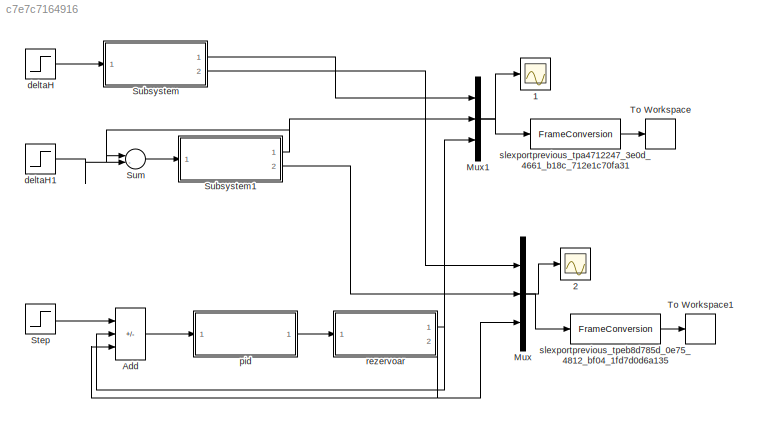
MODEL slx_c7e7c7164916
KIND model
BLOCK [Scope] 1
  DataFormat = Array
  Decimation = 1
  Floating = off
  Grid = on
  LimitDataPoints = on
  MaxDataPoints = 5000
  NumInputPorts = 1
  Ports = [1]
  SampleInput = off
  SampleTime = -1
  SaveName = ScopeData1
  SaveToWorkspace = off
  ShowLegends = on
  TickLabels = OneTimeTick
  TimeRange = auto
  YMax = 10
  YMin = -10
  ZoomMode = on
BLOCK [Scope] 2
  DataFormat = Array
  Decimation = 1
  Floating = off
  Grid = on
  LimitDataPoints = on
  MaxDataPoints = 5000
  NumInputPorts = 1
  Ports = [1]
  SampleInput = off
  SampleTime = -1
  SaveName = ScopeData
  SaveToWorkspace = off
  ShowLegends = off
  TickLabels = OneTimeTick
  TimeRange = auto
  YMax = 10
  YMin = -10
  ZoomMode = on
BLOCK [Sum] Add
  IconShape = rectangular
  Inputs = +--
  Ports = [3, 1]
BLOCK [Mux] Mux
  DisplayOption = bar
  Inputs = 3
  Ports = [3, 1]
BLOCK [Mux] Mux1
  DisplayOption = bar
  Inputs = 3
  Ports = [3, 1]
BLOCK [Step] Step
  After = 10
  Before = 1
  SampleTime = 0
  Time = 0
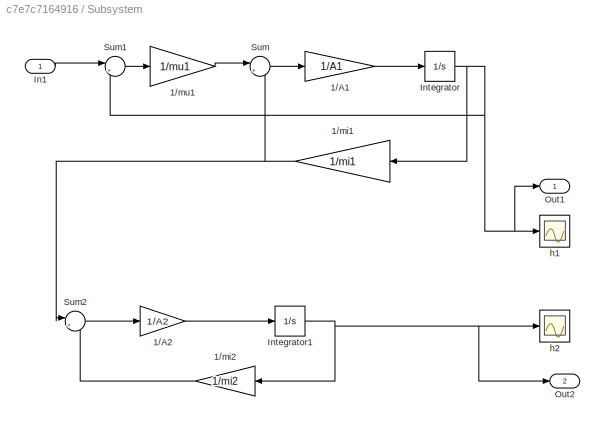
BLOCK [SubSystem] Subsystem
  FunctionWithSeparateData = off
  MaskHideContents = off
  MinAlgLoopOccurrences = off
  Opaque = off
  Ports = [1, 2]
  PropExecContextOutsideSubsystem = off
  RTWSystemCode = Auto
  RequestExecContextInheritance = off
BLOCK [Gain] Subsystem/1//A1
  Gain = 1/A1
BLOCK [Gain] Subsystem/1//A2
  Gain = 1/A2
BLOCK [Gain] Subsystem/1//mi1
  Gain = 1/mi1
BLOCK [Gain] Subsystem/1//mi2
  Gain = 1/mi2
BLOCK [Gain] Subsystem/1//mu1
  Gain = 1/mu1
BLOCK [Inport] Subsystem/In1
BLOCK [Integrator] Subsystem/Integrator
  InitialCondition = 1
  Ports = [1, 1]
BLOCK [Integrator] Subsystem/Integrator1
  InitialCondition = 1
  Ports = [1, 1]
BLOCK [Outport] Subsystem/Out1
BLOCK [Outport] Subsystem/Out2
  Port = 2
BLOCK [Sum] Subsystem/Sum
  Inputs = |+-
  Ports = [2, 1]
BLOCK [Sum] Subsystem/Sum1
  Inputs = |+-
  Ports = [2, 1]
BLOCK [Sum] Subsystem/Sum2
  Inputs = |+-
  Ports = [2, 1]
BLOCK [Scope] Subsystem/h1
  DataFormat = Array
  Decimation = 1
  Floating = off
  Grid = on
  LimitDataPoints = on
  MaxDataPoints = 5000
  NumInputPorts = 1
  Ports = [1]
  SampleInput = off
  SampleTime = -1
  SaveName = ScopeData2
  SaveToWorkspace = off
  ShowLegends = off
  TickLabels = OneTimeTick
  TimeRange = 600
  YMax = 10
  YMin = -10
  ZoomMode = on
BLOCK [Scope] Subsystem/h2
  DataFormat = Array
  Decimation = 1
  Floating = off
  Grid = on
  LimitDataPoints = on
  MaxDataPoints = 5000
  NumInputPorts = 1
  Ports = [1]
  SampleInput = off
  SampleTime = -1
  SaveName = ScopeData3
  SaveToWorkspace = off
  ShowLegends = off
  TickLabels = OneTimeTick
  TimeRange = 600
  YMax = 10
  YMin = -10
  ZoomMode = on
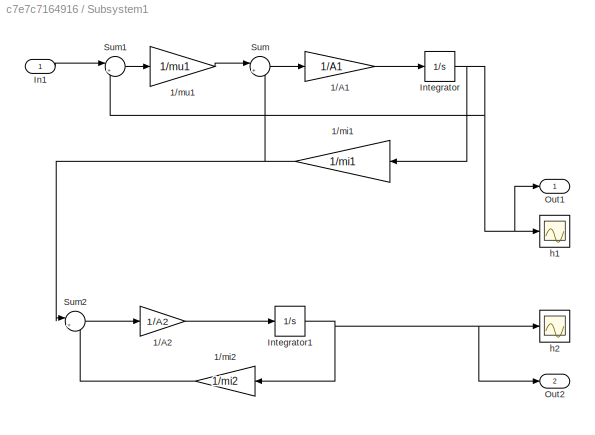
BLOCK [SubSystem] Subsystem1
  FunctionWithSeparateData = off
  MaskHideContents = off
  MinAlgLoopOccurrences = off
  Opaque = off
  Ports = [1, 2]
  PropExecContextOutsideSubsystem = off
  RTWSystemCode = Auto
  RequestExecContextInheritance = off
BLOCK [Gain] Subsystem1/1//A1
  Gain = 1/A1
BLOCK [Gain] Subsystem1/1//A2
  Gain = 1/A2
BLOCK [Gain] Subsystem1/1//mi1
  Gain = 1/mi1
BLOCK [Gain] Subsystem1/1//mi2
  Gain = 1/mi2
BLOCK [Gain] Subsystem1/1//mu1
  Gain = 1/mu1
BLOCK [Inport] Subsystem1/In1
BLOCK [Integrator] Subsystem1/Integrator
  InitialCondition = 1
  Ports = [1, 1]
BLOCK [Integrator] Subsystem1/Integrator1
  InitialCondition = 1
  Ports = [1, 1]
BLOCK [Outport] Subsystem1/Out1
BLOCK [Outport] Subsystem1/Out2
  Port = 2
BLOCK [Sum] Subsystem1/Sum
  Inputs = |+-
  Ports = [2, 1]
BLOCK [Sum] Subsystem1/Sum1
  Inputs = |+-
  Ports = [2, 1]
BLOCK [Sum] Subsystem1/Sum2
  Inputs = |+-
  Ports = [2, 1]
BLOCK [Scope] Subsystem1/h1
  DataFormat = Array
  Decimation = 1
  Floating = off
  Grid = on
  LimitDataPoints = on
  MaxDataPoints = 5000
  NumInputPorts = 1
  Ports = [1]
  SampleInput = off
  SampleTime = -1
  SaveName = ScopeData4
  SaveToWorkspace = off
  ShowLegends = off
  TickLabels = OneTimeTick
  TimeRange = 600
  YMax = 10
  YMin = -10
  ZoomMode = on
BLOCK [Scope] Subsystem1/h2
  DataFormat = Array
  Decimation = 1
  Floating = off
  Grid = on
  LimitDataPoints = on
  MaxDataPoints = 5000
  NumInputPorts = 1
  Ports = [1]
  SampleInput = off
  SampleTime = -1
  SaveName = ScopeData5
  SaveToWorkspace = off
  ShowLegends = off
  TickLabels = OneTimeTick
  TimeRange = 600
  YMax = 10
  YMin = -10
  ZoomMode = on
BLOCK [Sum] Sum
  Inputs = |-+
  Ports = [2, 1]
BLOCK [ToWorkspace] To Workspace
  FixptAsFi = on
  MaxDataPoints = inf
  Ports = [1]
  SampleTime = -1
  VariableName = k1
BLOCK [ToWorkspace] To Workspace1
  FixptAsFi = on
  MaxDataPoints = inf
  Ports = [1]
  SampleTime = -1
  VariableName = k2
BLOCK [Step] deltaH
  After = 15
  SampleTime = 0
BLOCK [Step] deltaH1
  After = 15
  SampleTime = 0
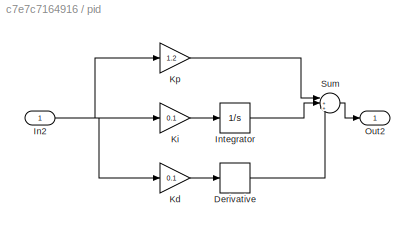
BLOCK [SubSystem] pid
  FunctionWithSeparateData = off
  MaskHideContents = off
  MinAlgLoopOccurrences = off
  Opaque = off
  Ports = [1, 1]
  PropExecContextOutsideSubsystem = off
  RTWSystemCode = Auto
  RequestExecContextInheritance = off
BLOCK [Derivative] pid/Derivative
BLOCK [Inport] pid/In2
BLOCK [Integrator] pid/Integrator
  Ports = [1, 1]
BLOCK [Gain] pid/Kd
  Gain = 0.1
BLOCK [Gain] pid/Ki
  Gain = 0.1
BLOCK [Gain] pid/Kp
  Gain = 1.2
BLOCK [Outport] pid/Out2
BLOCK [Sum] pid/Sum
  Inputs = |+++
  Ports = [3, 1]
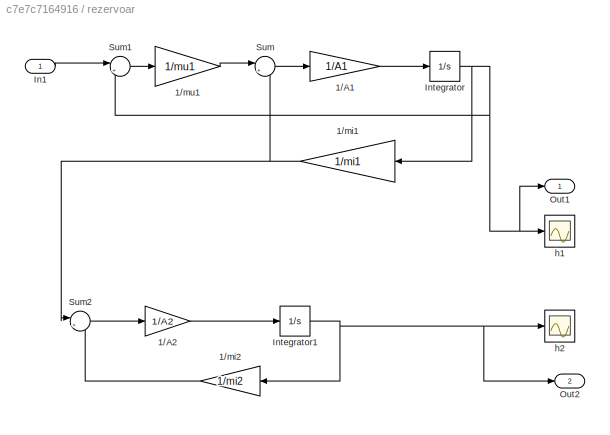
BLOCK [SubSystem] rezervoar
  FunctionWithSeparateData = off
  MaskHideContents = off
  MinAlgLoopOccurrences = off
  Opaque = off
  Ports = [1, 2]
  PropExecContextOutsideSubsystem = off
  RTWSystemCode = Auto
  RequestExecContextInheritance = off
BLOCK [Gain] rezervoar/1//A1
  Gain = 1/A1
BLOCK [Gain] rezervoar/1//A2
  Gain = 1/A2
BLOCK [Gain] rezervoar/1//mi1
  Gain = 1/mi1
BLOCK [Gain] rezervoar/1//mi2
  Gain = 1/mi2
BLOCK [Gain] rezervoar/1//mu1
  Gain = 1/mu1
BLOCK [Inport] rezervoar/In1
BLOCK [Integrator] rezervoar/Integrator
  InitialCondition = 1
  Ports = [1, 1]
BLOCK [Integrator] rezervoar/Integrator1
  InitialCondition = 1
  Ports = [1, 1]
BLOCK [Outport] rezervoar/Out1
BLOCK [Outport] rezervoar/Out2
  Port = 2
BLOCK [Sum] rezervoar/Sum
  Inputs = |+-
  Ports = [2, 1]
BLOCK [Sum] rezervoar/Sum1
  Inputs = |+-
  Ports = [2, 1]
BLOCK [Sum] rezervoar/Sum2
  Inputs = |+-
  Ports = [2, 1]
BLOCK [Scope] rezervoar/h1
  DataFormat = Array
  Decimation = 1
  Floating = off
  Grid = on
  LimitDataPoints = on
  MaxDataPoints = 5000
  NumInputPorts = 1
  Ports = [1]
  SampleInput = off
  SampleTime = -1
  SaveName = ScopeData6
  SaveToWorkspace = off
  ShowLegends = off
  TickLabels = OneTimeTick
  TimeRange = 600
  YMax = 10
  YMin = -10
  ZoomMode = on
BLOCK [Scope] rezervoar/h2
  DataFormat = Array
  Decimation = 1
  Floating = off
  Grid = on
  LimitDataPoints = on
  MaxDataPoints = 5000
  NumInputPorts = 1
  Ports = [1]
  SampleInput = off
  SampleTime = -1
  SaveName = ScopeData7
  SaveToWorkspace = off
  ShowLegends = off
  TickLabels = OneTimeTick
  TimeRange = 600
  YMax = 10
  YMin = -10
  ZoomMode = on
BLOCK [FrameConversion] slexportprevious_tpa4712247_3e0d_4661_b18c_712e1c70fa31
  OutFrame = Sample-based
  Ports = [1, 1]
BLOCK [FrameConversion] slexportprevious_tpeb8d785d_0e75_4812_bf04_1fd7d0d6a135
  OutFrame = Sample-based
  Ports = [1, 1]
LINE Add:1 -> pid:1
NET Mux1:1 -> 1:1, slexportprevious_tpa4712247_3e0d_4661_b18c_712e1c70fa31:1
NET Mux:1 -> 2:1, slexportprevious_tpeb8d785d_0e75_4812_bf04_1fd7d0d6a135:1
LINE Step:1 -> Add:1
LINE Subsystem/1//A1:1 -> Subsystem/Integrator:1
LINE Subsystem/1//A2:1 -> Subsystem/Integrator1:1
NET Subsystem/1//mi1:1 -> Subsystem/Sum2:1, Subsystem/Sum:2
LINE Subsystem/1//mi2:1 -> Subsystem/Sum2:2
LINE Subsystem/1//mu1:1 -> Subsystem/Sum:1
LINE Subsystem/In1:1 -> Subsystem/Sum1:1
NET Subsystem/Integrator1:1 -> Subsystem/1//mi2:1, Subsystem/Out2:1, Subsystem/h2:1
NET Subsystem/Integrator:1 -> Subsystem/1//mi1:1, Subsystem/Out1:1, Subsystem/Sum1:2, Subsystem/h1:1
LINE Subsystem/Sum1:1 -> Subsystem/1//mu1:1
LINE Subsystem/Sum2:1 -> Subsystem/1//A2:1
LINE Subsystem/Sum:1 -> Subsystem/1//A1:1
LINE Subsystem1/1//A1:1 -> Subsystem1/Integrator:1
LINE Subsystem1/1//A2:1 -> Subsystem1/Integrator1:1
NET Subsystem1/1//mi1:1 -> Subsystem1/Sum2:1, Subsystem1/Sum:2
LINE Subsystem1/1//mi2:1 -> Subsystem1/Sum2:2
LINE Subsystem1/1//mu1:1 -> Subsystem1/Sum:1
LINE Subsystem1/In1:1 -> Subsystem1/Sum1:1
NET Subsystem1/Integrator1:1 -> Subsystem1/1//mi2:1, Subsystem1/Out2:1, Subsystem1/h2:1
NET Subsystem1/Integrator:1 -> Subsystem1/1//mi1:1, Subsystem1/Out1:1, Subsystem1/Sum1:2, Subsystem1/h1:1
LINE Subsystem1/Sum1:1 -> Subsystem1/1//mu1:1
LINE Subsystem1/Sum2:1 -> Subsystem1/1//A2:1
LINE Subsystem1/Sum:1 -> Subsystem1/1//A1:1
NET Subsystem1:1 -> Mux1:2, Sum:1
LINE Subsystem1:2 -> Mux:2
LINE Subsystem:1 -> Mux1:1
LINE Subsystem:2 -> Mux:1
LINE Sum:1 -> Subsystem1:1
LINE deltaH1:1 -> Sum:2
LINE deltaH:1 -> Subsystem:1
LINE pid/Derivative:1 -> pid/Sum:3
NET pid/In2:1 -> pid/Kd:1, pid/Ki:1, pid/Kp:1
LINE pid/Integrator:1 -> pid/Sum:2
LINE pid/Kd:1 -> pid/Derivative:1
LINE pid/Ki:1 -> pid/Integrator:1
LINE pid/Kp:1 -> pid/Sum:1
LINE pid/Sum:1 -> pid/Out2:1
LINE pid:1 -> rezervoar:1
LINE rezervoar/1//A1:1 -> rezervoar/Integrator:1
LINE rezervoar/1//A2:1 -> rezervoar/Integrator1:1
NET rezervoar/1//mi1:1 -> rezervoar/Sum2:1, rezervoar/Sum:2
LINE rezervoar/1//mi2:1 -> rezervoar/Sum2:2
LINE rezervoar/1//mu1:1 -> rezervoar/Sum:1
LINE rezervoar/In1:1 -> rezervoar/Sum1:1
NET rezervoar/Integrator1:1 -> rezervoar/1//mi2:1, rezervoar/Out2:1, rezervoar/h2:1
NET rezervoar/Integrator:1 -> rezervoar/1//mi1:1, rezervoar/Out1:1, rezervoar/Sum1:2, rezervoar/h1:1
LINE rezervoar/Sum1:1 -> rezervoar/1//mu1:1
LINE rezervoar/Sum2:1 -> rezervoar/1//A2:1
LINE rezervoar/Sum:1 -> rezervoar/1//A1:1
NET rezervoar:1 -> Add:2, Mux1:3
NET rezervoar:2 -> Add:3, Mux:3
LINE slexportprevious_tpa4712247_3e0d_4661_b18c_712e1c70fa31:1 -> To Workspace:1
LINE slexportprevious_tpeb8d785d_0e75_4812_bf04_1fd7d0d6a135:1 -> To Workspace1:1
note: NET lines group one-source signal fan-out (src -> all destinations, sorted); 1:1 wires keep LINE
